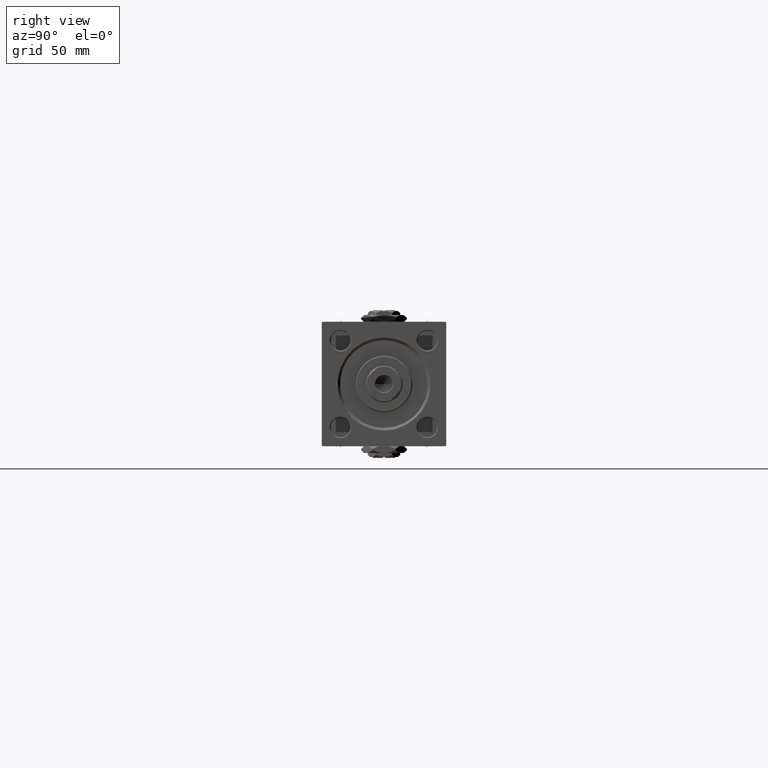
[diagram: clean part render]
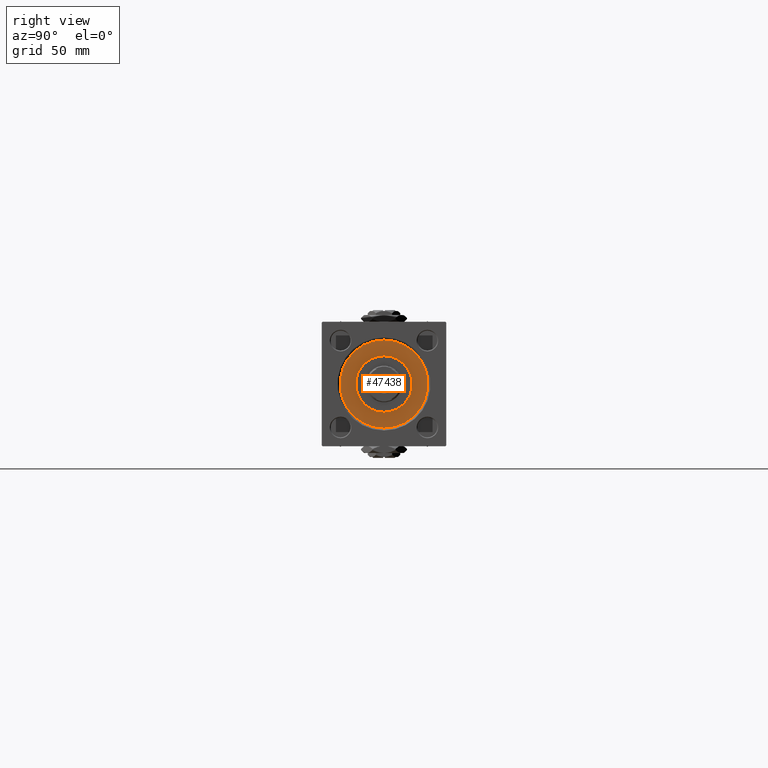
[diagram: same view with one face highlighted and labeled with its STEP entity id]
A machine part, right view. The second image highlights one B-rep face of the part: STEP entity #47438.
In plain terms, the highlighted planar face has unit normal (1, 0, 0).
Its self-contained STEP definition (entity closure, byte-faithful):
#577 = DIRECTION ( 'NONE',  ( 1.000000000000000000, 0.000000000000000000, 0.000000000000000000 ) ) ;
#1290 = DIRECTION ( 'NONE',  ( 0.000000000000000000, 0.000000000000000000, 1.000000000000000000 ) ) ;
#1862 = ORIENTED_EDGE ( 'NONE', *, *, #49235, .F. ) ;
#4261 = DIRECTION ( 'NONE',  ( 0.000000000000000000, 0.000000000000000000, 1.000000000000000000 ) ) ;
#5409 = CIRCLE ( 'NONE', #21411, 26.50000000000000355 ) ;
#5417 = AXIS2_PLACEMENT_3D ( 'NONE', #35871, #16053, #40358 ) ;
#8056 = ORIENTED_EDGE ( 'NONE', *, *, #31336, .T. ) ;
#9340 = PLANE ( 'NONE',  #38473 ) ;
#10359 = EDGE_LOOP ( 'NONE', ( #8056, #50658 ) ) ;
#10395 = CARTESIAN_POINT ( 'NONE',  ( -17.00000000000000000, 0.000000000000000000, 28.69999999999999929 ) ) ;
#11111 = EDGE_CURVE ( 'NONE', #48973, #29294, #28287, .T. ) ;
#11667 = DIRECTION ( 'NONE',  ( 0.000000000000000000, 0.000000000000000000, 1.000000000000000000 ) ) ;
#13241 = AXIS2_PLACEMENT_3D ( 'NONE', #36770, #4261, #577 ) ;
#15128 = CARTESIAN_POINT ( 'NONE',  ( 26.50000000000000355, 3.245314017740486554E-15, 28.69999999999999929 ) ) ;
#15619 = VERTEX_POINT ( 'NONE', #35274 ) ;
#16053 = DIRECTION ( 'NONE',  ( 0.000000000000000000, 0.000000000000000000, 1.000000000000000000 ) ) ;
#16628 = CIRCLE ( 'NONE', #13241, 17.00000000000000000 ) ;
#20675 = DIRECTION ( 'NONE',  ( 1.000000000000000000, 0.000000000000000000, -0.000000000000000000 ) ) ;
#21411 = AXIS2_PLACEMENT_3D ( 'NONE', #22124, #1290, #37747 ) ;
#22124 = CARTESIAN_POINT ( 'NONE',  ( 0.000000000000000000, 0.000000000000000000, 28.69999999999999929 ) ) ;
#28287 = CIRCLE ( 'NONE', #5417, 17.00000000000000000 ) ;
#29294 = VERTEX_POINT ( 'NONE', #40543 ) ;
#31336 = EDGE_CURVE ( 'NONE', #15619, #49160, #39716, .T. ) ;
#31347 = ORIENTED_EDGE ( 'NONE', *, *, #11111, .F. ) ;
#35274 = CARTESIAN_POINT ( 'NONE',  ( -26.50000000000000355, 0.000000000000000000, 28.69999999999999929 ) ) ;
#35871 = CARTESIAN_POINT ( 'NONE',  ( 0.000000000000000000, 0.000000000000000000, 28.69999999999999929 ) ) ;
#36770 = CARTESIAN_POINT ( 'NONE',  ( 0.000000000000000000, 0.000000000000000000, 28.69999999999999929 ) ) ;
#36810 = FACE_BOUND ( 'NONE', #41545, .T. ) ;
#37078 = CARTESIAN_POINT ( 'NONE',  ( 0.000000000000000000, 0.000000000000000000, 28.69999999999999929 ) ) ;
#37747 = DIRECTION ( 'NONE',  ( 1.000000000000000000, 0.000000000000000000, 0.000000000000000000 ) ) ;
#38473 = AXIS2_PLACEMENT_3D ( 'NONE', #37078, #44997, #20675 ) ;
#38581 = EDGE_CURVE ( 'NONE', #49160, #15619, #5409, .T. ) ;
#39716 = CIRCLE ( 'NONE', #46475, 26.50000000000000355 ) ;
#40358 = DIRECTION ( 'NONE',  ( 1.000000000000000000, 0.000000000000000000, 0.000000000000000000 ) ) ;
#40543 = CARTESIAN_POINT ( 'NONE',  ( 17.00000000000000000, 2.081899558550500280E-15, 28.69999999999999929 ) ) ;
#41545 = EDGE_LOOP ( 'NONE', ( #31347, #1862 ) ) ;
#44997 = DIRECTION ( 'NONE',  ( 0.000000000000000000, 0.000000000000000000, 1.000000000000000000 ) ) ;
#46044 = CARTESIAN_POINT ( 'NONE',  ( 0.000000000000000000, 0.000000000000000000, 28.69999999999999929 ) ) ;
#46475 = AXIS2_PLACEMENT_3D ( 'NONE', #46044, #11667, #47587 ) ;
#47438 = ADVANCED_FACE ( 'NONE', ( #36810, #48696 ), #9340, .T. ) ;
#47587 = DIRECTION ( 'NONE',  ( 1.000000000000000000, 0.000000000000000000, 0.000000000000000000 ) ) ;
#48696 = FACE_OUTER_BOUND ( 'NONE', #10359, .T. ) ;
#48973 = VERTEX_POINT ( 'NONE', #10395 ) ;
#49160 = VERTEX_POINT ( 'NONE', #15128 ) ;
#49235 = EDGE_CURVE ( 'NONE', #29294, #48973, #16628, .T. ) ;
#50658 = ORIENTED_EDGE ( 'NONE', *, *, #38581, .T. ) ;